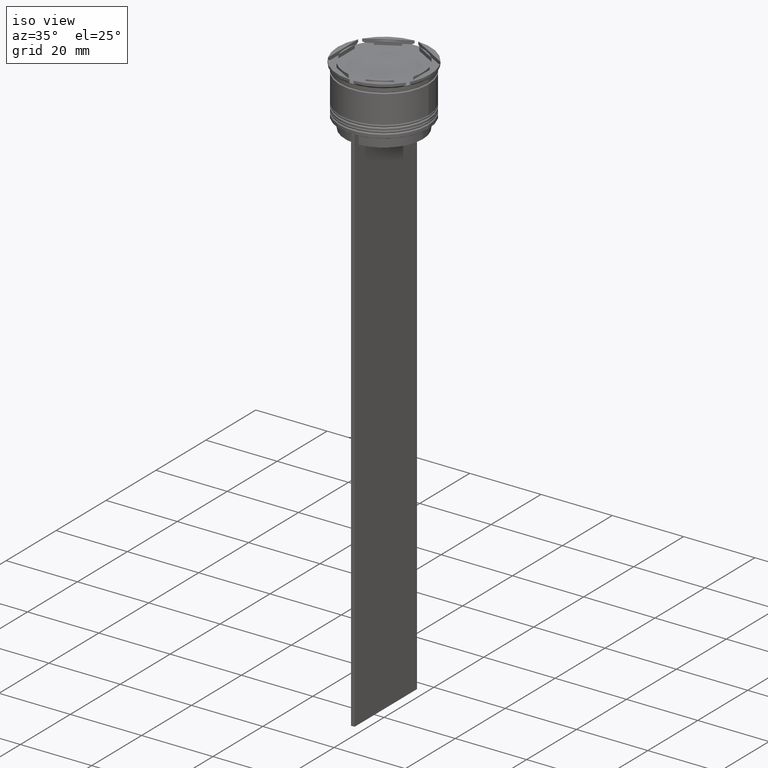
[diagram: clean part render]
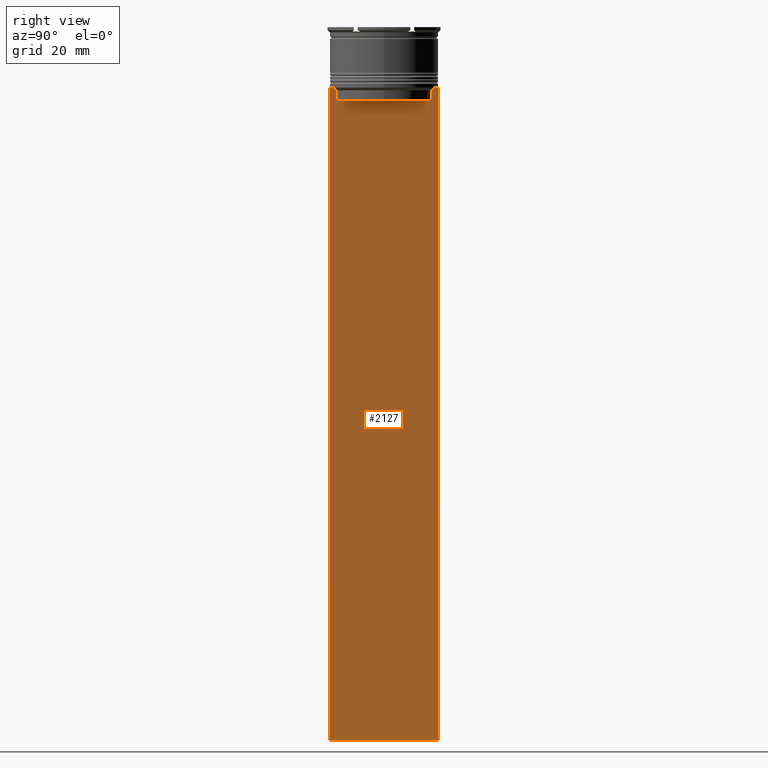
[diagram: tour spotlight — one face highlighted and labeled with its STEP entity id]
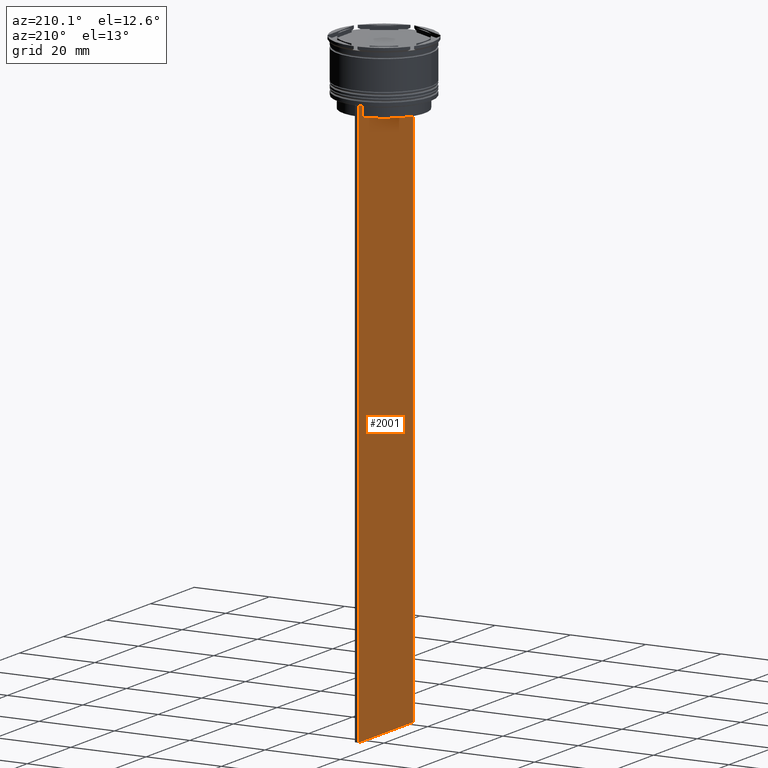
[diagram: tour spotlight — one face highlighted and labeled with its STEP entity id]
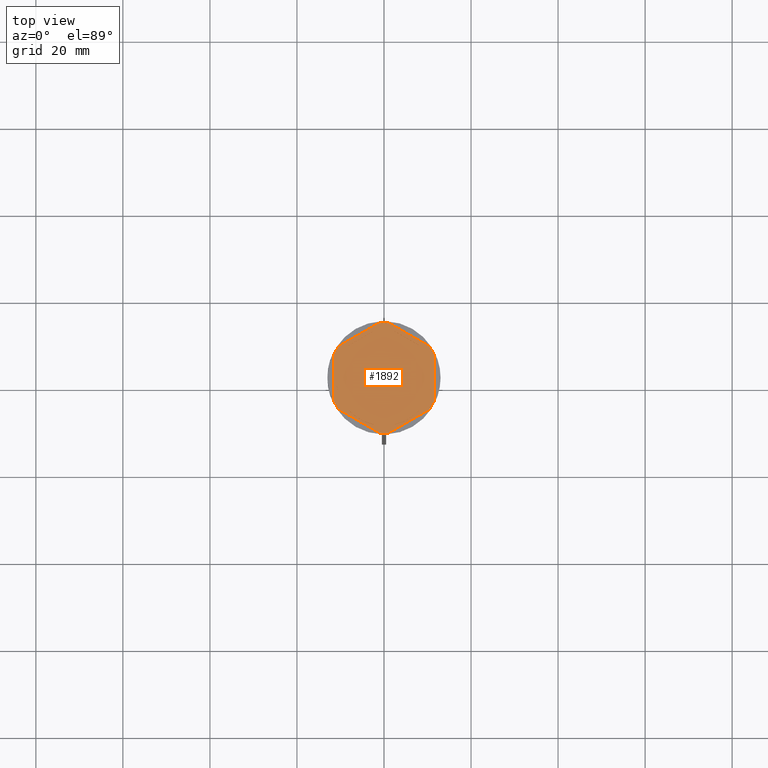
[diagram: tour spotlight — one face highlighted and labeled with its STEP entity id]
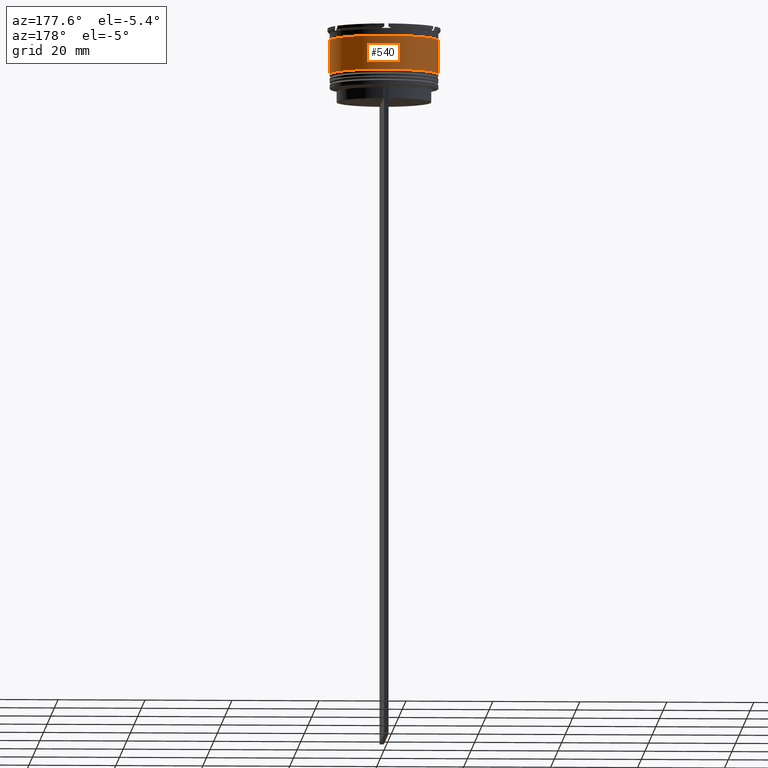
[diagram: tour spotlight — one face highlighted and labeled with its STEP entity id]
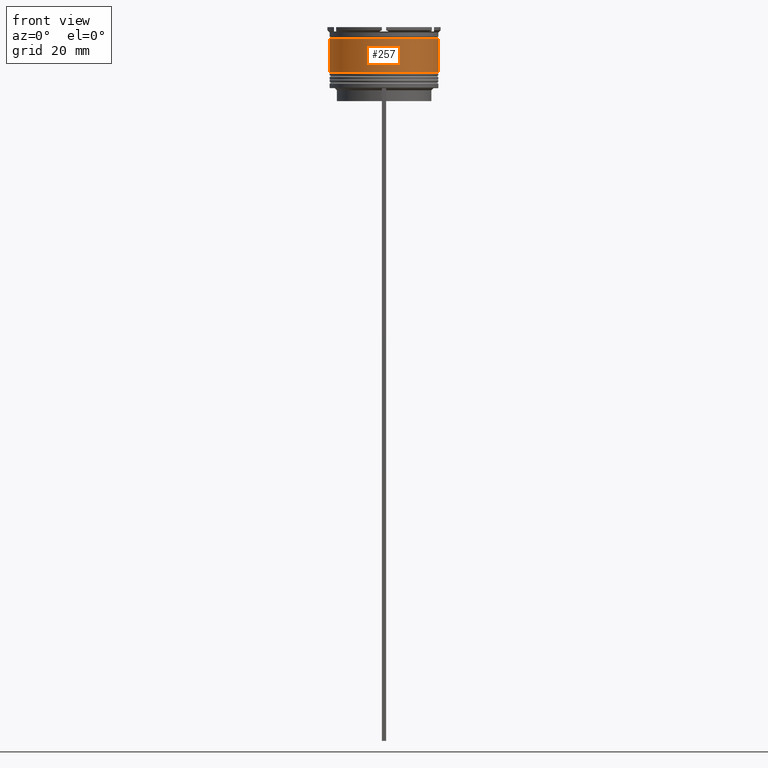
[diagram: tour spotlight — one face highlighted and labeled with its STEP entity id]
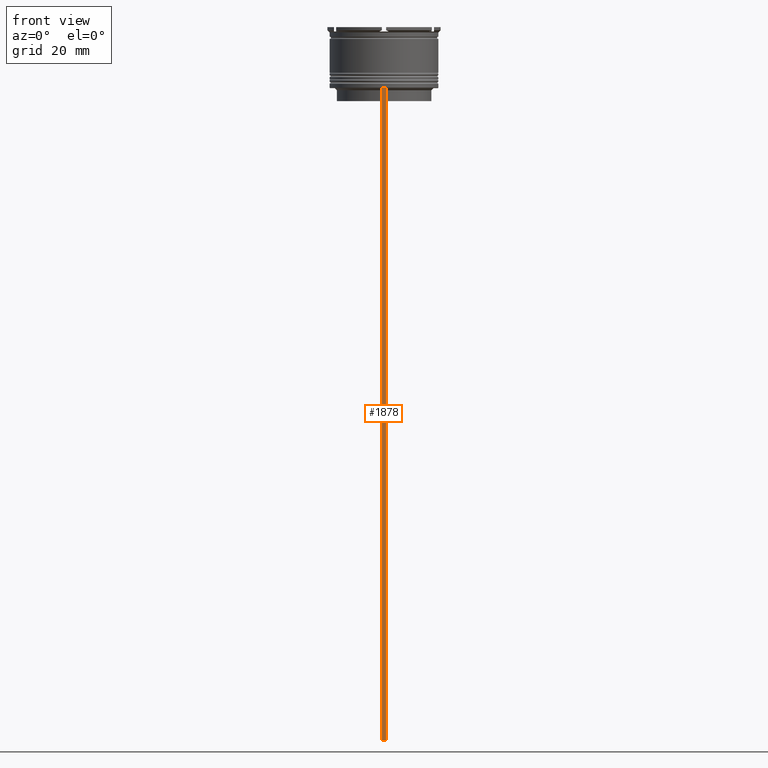
[diagram: tour spotlight — one face highlighted and labeled with its STEP entity id]
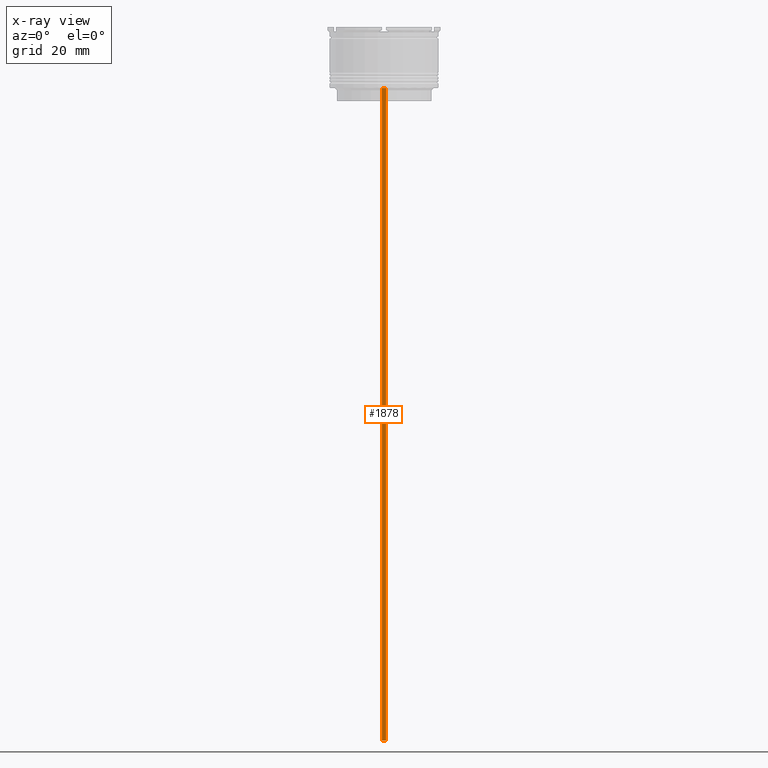
[diagram: x-ray of the same camera — body ghosted, this tour face saturated]
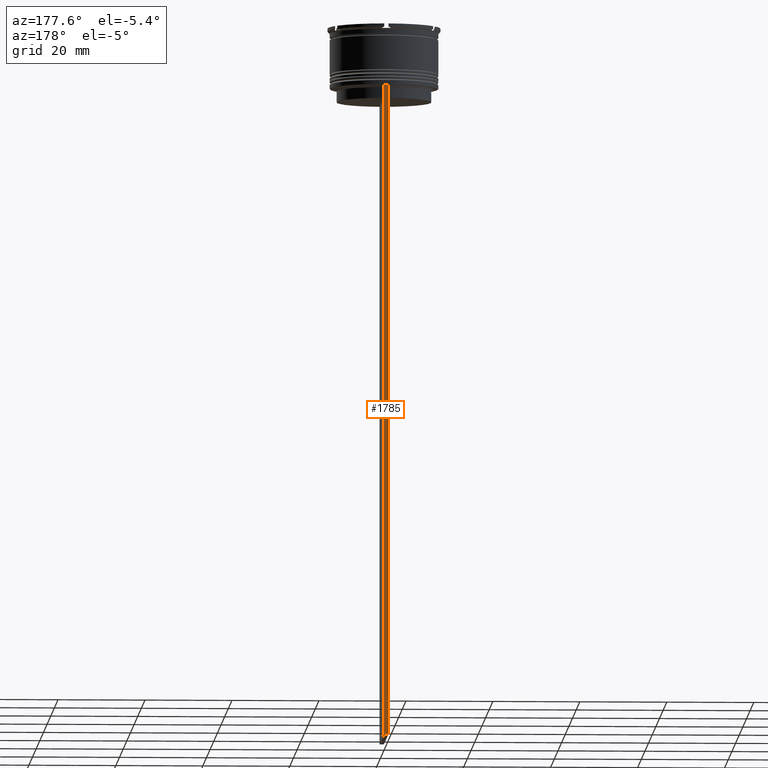
[diagram: tour spotlight — one face highlighted and labeled with its STEP entity id]
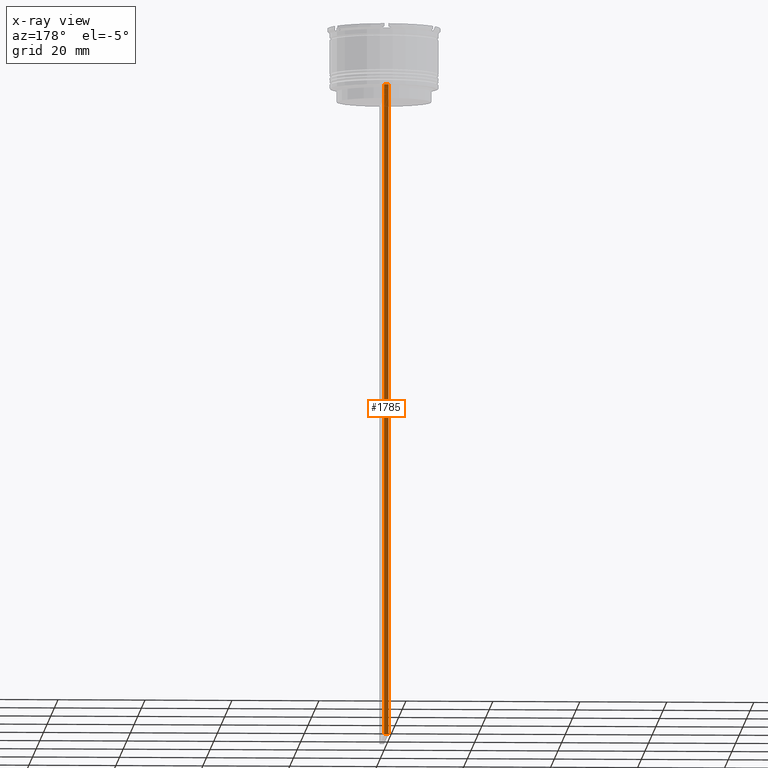
[diagram: x-ray of the same camera — body ghosted, this tour face saturated]
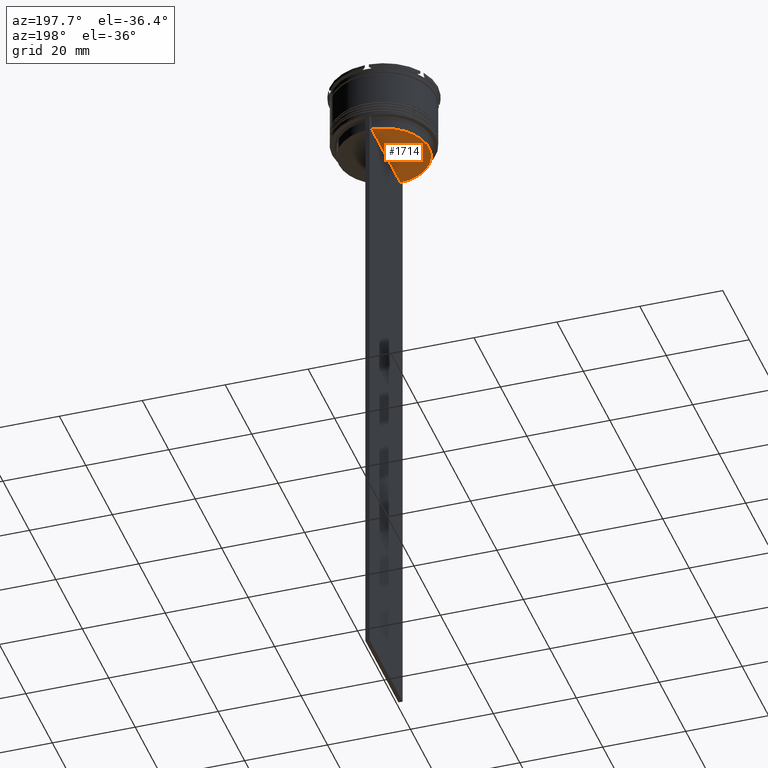
[diagram: tour spotlight — one face highlighted and labeled with its STEP entity id]
A machine part: a face-by-face anatomy tour. The part has 100 B-rep faces; the first image is the clean iso view, then the 8 largest visible faces are spotlighted one at a time (largest first), each with its STEP entity span.

Face 1 — right view, entity #2127. In plain terms, the highlighted planar face has unit normal (-1, 0, 0).
Definition (entity closure, byte-faithful):
#8 = ORIENTED_EDGE ( 'NONE', *, *, #1687, .T. ) ;
#27 = LINE ( 'NONE', #44, #544 ) ;
#44 = CARTESIAN_POINT ( 'NONE',  ( 0.5000000000000000000, -12.49999999999999289, -14.00000000000000178 ) ) ;
#67 = CARTESIAN_POINT ( 'NONE',  ( 0.5000000000000000000, -11.38902980942626719, -14.00000000000000178 ) ) ;
#79 = ORIENTED_EDGE ( 'NONE', *, *, #2332, .T. ) ;
#82 = ORIENTED_EDGE ( 'NONE', *, *, #2123, .T. ) ;
#118 = ORIENTED_EDGE ( 'NONE', *, *, #2616, .T. ) ;
#125 = CARTESIAN_POINT ( 'NONE',  ( 0.5000000000000000000, -12.49999999999999289, -14.00000000000000178 ) ) ;
#132 = ORIENTED_EDGE ( 'NONE', *, *, #2091, .T. ) ;
#140 = LINE ( 'NONE', #125, #1760 ) ;
#152 = PLANE ( 'NONE',  #1355 ) ;
#165 = EDGE_CURVE ( 'NONE', #2779, #744, #529, .T. ) ;
#180 = ORIENTED_EDGE ( 'NONE', *, *, #911, .T. ) ;
#228 = VECTOR ( 'NONE', #347, 1000.000000000000000 ) ;
#270 = DIRECTION ( 'NONE',  ( 0.000000000000000000, -1.000000000000000000, 0.000000000000000000 ) ) ;
#281 = ORIENTED_EDGE ( 'NONE', *, *, #847, .T. ) ;
#287 = VERTEX_POINT ( 'NONE', #1191 ) ;
#347 = DIRECTION ( 'NONE',  ( 0.000000000000000000, -1.000000000000000000, 0.000000000000000000 ) ) ;
#387 = VECTOR ( 'NONE', #1101, 1000.000000000000000 ) ;
#420 = EDGE_CURVE ( 'NONE', #1209, #1917, #2275, .T. ) ;
#472 = DIRECTION ( 'NONE',  ( 0.000000000000000000, 1.000000000000000000, 0.000000000000000000 ) ) ;
#477 = CARTESIAN_POINT ( 'NONE',  ( 0.5000000000000000000, -12.49999999999999289, -163.9999999999999716 ) ) ;
#488 = VECTOR ( 'NONE', #1418, 1000.000000000000000 ) ;
#513 = CARTESIAN_POINT ( 'NONE',  ( 0.5000000000000000000, -11.22219891450652973, -14.16667035398018903 ) ) ;
#529 = LINE ( 'NONE', #1813, #1664 ) ;
#543 = VERTEX_POINT ( 'NONE', #1670 ) ;
#544 = VECTOR ( 'NONE', #1182, 1000.000000000000000 ) ;
#611 = CARTESIAN_POINT ( 'NONE',  ( 0.5000000000000000000, -11.38902980942626719, -14.00000000000000178 ) ) ;
#628 = EDGE_CURVE ( 'NONE', #287, #1395, #1555, .T. ) ;
#723 = DIRECTION ( 'NONE',  ( 0.000000000000000000, 0.000000000000000000, -1.000000000000000000 ) ) ;
#733 = ORIENTED_EDGE ( 'NONE', *, *, #628, .T. ) ;
#744 = VERTEX_POINT ( 'NONE', #1335 ) ;
#832 = CARTESIAN_POINT ( 'NONE',  ( 0.5000000000000000000, 10.88852607105296144, -17.00000000000000000 ) ) ;
#840 = DIRECTION ( 'NONE',  ( -1.000000000000000000, 0.000000000000000000, 0.000000000000000000 ) ) ;
#847 = EDGE_CURVE ( 'NONE', #1966, #543, #27, .T. ) ;
#901 = LINE ( 'NONE', #1545, #2763 ) ;
#911 = EDGE_CURVE ( 'NONE', #1237, #1209, #1987, .T. ) ;
#940 = CARTESIAN_POINT ( 'NONE',  ( 0.5000000000000000000, -12.38991525394746773, -14.00000000000000178 ) ) ;
#1021 = LINE ( 'NONE', #2556, #228 ) ;
#1101 = DIRECTION ( 'NONE',  ( 0.000000000000000000, 0.000000000000000000, -1.000000000000000000 ) ) ;
#1182 = DIRECTION ( 'NONE',  ( 0.000000000000000000, -1.000000000000000000, 0.000000000000000000 ) ) ;
#1191 = CARTESIAN_POINT ( 'NONE',  ( 0.5000000000000000000, 11.38902980942626719, -14.00000000000000178 ) ) ;
#1209 = VERTEX_POINT ( 'NONE', #611 ) ;
#1237 = VERTEX_POINT ( 'NONE', #2399 ) ;
#1335 = CARTESIAN_POINT ( 'NONE',  ( 0.5000000000000000000, -12.49999999999999289, -163.9999999999999716 ) ) ;
#1355 = AXIS2_PLACEMENT_3D ( 'NONE', #1701, #840, #1918 ) ;
#1395 = VERTEX_POINT ( 'NONE', #2199 ) ;
#1418 = DIRECTION ( 'NONE',  ( 0.000000000000000000, -1.000000000000000000, 0.000000000000000000 ) ) ;
#1438 = CARTESIAN_POINT ( 'NONE',  ( 0.5000000000000000000, 11.22219891375843304, -14.16667035472756808 ) ) ;
#1478 = CARTESIAN_POINT ( 'NONE',  ( 0.5000000000000000000, 11.05536450345590538, -14.33333719074559376 ) ) ;
#1480 = VECTOR ( 'NONE', #2528, 1000.000000000000000 ) ;
#1494 = ORIENTED_EDGE ( 'NONE', *, *, #165, .T. ) ;
#1545 = CARTESIAN_POINT ( 'NONE',  ( 0.5000000000000000000, 10.88852607105296322, 0.000000000000000000 ) ) ;
#1555 = B_SPLINE_CURVE_WITH_KNOTS ( 'NONE', 3,
 ( #2810, #1438, #1478, #2362 ),
 .UNSPECIFIED., .F., .F.,
 ( 4, 4 ),
 ( 0.01935560801904634073, 0.02006307108468586772 ),
 .UNSPECIFIED. ) ;
#1580 = CARTESIAN_POINT ( 'NONE',  ( 0.5000000000000000000, 12.50000000000000711, 11.01999200639360765 ) ) ;
#1635 = LINE ( 'NONE', #1881, #488 ) ;
#1644 = CARTESIAN_POINT ( 'NONE',  ( 0.5000000000000000000, -10.88852607105296322, 0.000000000000000000 ) ) ;
#1661 = LINE ( 'NONE', #1644, #1480 ) ;
#1664 = VECTOR ( 'NONE', #723, 1000.000000000000000 ) ;
#1670 = CARTESIAN_POINT ( 'NONE',  ( 0.5000000000000000000, 12.38991525394746773, -14.00000000000000178 ) ) ;
#1687 = EDGE_CURVE ( 'NONE', #2331, #1237, #1661, .T. ) ;
#1701 = CARTESIAN_POINT ( 'NONE',  ( 0.5000000000000000000, -12.49999999999999289, 11.01999200639360765 ) ) ;
#1751 = LINE ( 'NONE', #1580, #387 ) ;
#1760 = VECTOR ( 'NONE', #2832, 1000.000000000000000 ) ;
#1779 = VERTEX_POINT ( 'NONE', #832 ) ;
#1813 = CARTESIAN_POINT ( 'NONE',  ( 0.5000000000000000000, -12.49999999999999289, 11.01999200639360765 ) ) ;
#1833 = CARTESIAN_POINT ( 'NONE',  ( 0.5000000000000000000, -10.88852607105296322, -14.50000000000000000 ) ) ;
#1881 = CARTESIAN_POINT ( 'NONE',  ( 0.5000000000000000000, 10.90000000000000213, -17.00000000000000000 ) ) ;
#1917 = VERTEX_POINT ( 'NONE', #940 ) ;
#1918 = DIRECTION ( 'NONE',  ( 0.000000000000000000, 0.000000000000000000, 1.000000000000000000 ) ) ;
#1966 = VERTEX_POINT ( 'NONE', #2733 ) ;
#1987 = B_SPLINE_CURVE_WITH_KNOTS ( 'NONE', 3,
 ( #1833, #2719, #513, #67 ),
 .UNSPECIFIED., .F., .F.,
 ( 4, 4 ),
 ( 0.05041323384703226551, 0.05112713601261605068 ),
 .UNSPECIFIED. ) ;
#2032 = CARTESIAN_POINT ( 'NONE',  ( 0.5000000000000000000, -12.49999999999999289, -14.00000000000000178 ) ) ;
#2091 = EDGE_CURVE ( 'NONE', #543, #287, #140, .T. ) ;
#2123 = EDGE_CURVE ( 'NONE', #1917, #2779, #1021, .T. ) ;
#2127 = ADVANCED_FACE ( 'NONE', ( #2366 ), #152, .F. ) ;
#2146 = VERTEX_POINT ( 'NONE', #2817 ) ;
#2199 = CARTESIAN_POINT ( 'NONE',  ( 0.5000000000000000000, 10.88852607105296322, -14.50000000000000000 ) ) ;
#2207 = CARTESIAN_POINT ( 'NONE',  ( 0.5000000000000000000, -12.49999999999999289, -14.00000000000000178 ) ) ;
#2208 = VECTOR ( 'NONE', #270, 1000.000000000000000 ) ;
#2239 = DIRECTION ( 'NONE',  ( 0.000000000000000000, 0.000000000000000000, -1.000000000000000000 ) ) ;
#2275 = LINE ( 'NONE', #2032, #2208 ) ;
#2331 = VERTEX_POINT ( 'NONE', #2687 ) ;
#2332 = EDGE_CURVE ( 'NONE', #744, #2146, #2468, .T. ) ;
#2353 = EDGE_CURVE ( 'NONE', #1966, #2146, #1751, .T. ) ;
#2362 = CARTESIAN_POINT ( 'NONE',  ( 0.5000000000000000000, 10.88852607105296322, -14.50000000000000000 ) ) ;
#2366 = FACE_OUTER_BOUND ( 'NONE', #2498, .T. ) ;
#2399 = CARTESIAN_POINT ( 'NONE',  ( 0.5000000000000000000, -10.88852607105296322, -14.50000000000000000 ) ) ;
#2468 = LINE ( 'NONE', #477, #2712 ) ;
#2498 = EDGE_LOOP ( 'NONE', ( #132, #733, #2784, #118, #8, #180, #2594, #82, #1494, #79, #2856, #281 ) ) ;
#2528 = DIRECTION ( 'NONE',  ( -0.000000000000000000, -0.000000000000000000, 1.000000000000000000 ) ) ;
#2556 = CARTESIAN_POINT ( 'NONE',  ( 0.5000000000000000000, -12.49999999999999289, -14.00000000000000178 ) ) ;
#2594 = ORIENTED_EDGE ( 'NONE', *, *, #420, .T. ) ;
#2616 = EDGE_CURVE ( 'NONE', #1779, #2331, #1635, .T. ) ;
#2687 = CARTESIAN_POINT ( 'NONE',  ( 0.5000000000000000000, -10.88852607105296144, -17.00000000000000000 ) ) ;
#2712 = VECTOR ( 'NONE', #472, 1000.000000000000000 ) ;
#2719 = CARTESIAN_POINT ( 'NONE',  ( 0.5000000000000000000, -11.05536450423839234, -14.33333718996393102 ) ) ;
#2733 = CARTESIAN_POINT ( 'NONE',  ( 0.5000000000000000000, 12.50000000000000711, -14.00000000000000178 ) ) ;
#2763 = VECTOR ( 'NONE', #2239, 1000.000000000000000 ) ;
#2779 = VERTEX_POINT ( 'NONE', #2207 ) ;
#2784 = ORIENTED_EDGE ( 'NONE', *, *, #2816, .T. ) ;
#2810 = CARTESIAN_POINT ( 'NONE',  ( 0.5000000000000000000, 11.38902980942626719, -14.00000000000000178 ) ) ;
#2816 = EDGE_CURVE ( 'NONE', #1395, #1779, #901, .T. ) ;
#2817 = CARTESIAN_POINT ( 'NONE',  ( 0.5000000000000000000, 12.50000000000000711, -163.9999999999999716 ) ) ;
#2832 = DIRECTION ( 'NONE',  ( 0.000000000000000000, -1.000000000000000000, 0.000000000000000000 ) ) ;
#2856 = ORIENTED_EDGE ( 'NONE', *, *, #2353, .F. ) ;

Face 2 — auxiliary view, entity #2001. In plain terms, the highlighted planar face has unit normal (-1, 0, 0).
Definition (entity closure, byte-faithful):
#1 = VERTEX_POINT ( 'NONE', #374 ) ;
#50 = DIRECTION ( 'NONE',  ( 0.000000000000000000, 0.000000000000000000, 1.000000000000000000 ) ) ;
#64 = EDGE_LOOP ( 'NONE', ( #479, #781, #1444, #647, #1913, #1279, #812, #1468, #2342, #608, #406, #2578 ) ) ;
#77 = EDGE_CURVE ( 'NONE', #361, #1572, #1782, .T. ) ;
#91 = EDGE_CURVE ( 'NONE', #1465, #394, #1969, .T. ) ;
#101 = CARTESIAN_POINT ( 'NONE',  ( -0.5000000000000000000, -12.49999999999999289, -14.00000000000000178 ) ) ;
#171 = CARTESIAN_POINT ( 'NONE',  ( -0.5000000000000000000, 10.88852607105296322, 0.000000000000000000 ) ) ;
#284 = CARTESIAN_POINT ( 'NONE',  ( -0.5000000000000000000, 11.38902980942626719, -14.00000000000000178 ) ) ;
#292 = CARTESIAN_POINT ( 'NONE',  ( -0.5000000000000000000, 12.50000000000000711, -14.00000000000000178 ) ) ;
#319 = DIRECTION ( 'NONE',  ( -1.000000000000000000, 0.000000000000000000, 0.000000000000000000 ) ) ;
#323 = CARTESIAN_POINT ( 'NONE',  ( -0.5000000000000000000, 11.38902980942626719, -14.00000000000000178 ) ) ;
#356 = DIRECTION ( 'NONE',  ( 0.000000000000000000, 0.000000000000000000, -1.000000000000000000 ) ) ;
#361 = VERTEX_POINT ( 'NONE', #1686 ) ;
#365 = VECTOR ( 'NONE', #1403, 1000.000000000000000 ) ;
#372 = CARTESIAN_POINT ( 'NONE',  ( -0.5000000000000000000, -12.49999999999999289, -163.9999999999999716 ) ) ;
#374 = CARTESIAN_POINT ( 'NONE',  ( -0.5000000000000000000, 12.50000000000000711, -163.9999999999999716 ) ) ;
#394 = VERTEX_POINT ( 'NONE', #563 ) ;
#406 = ORIENTED_EDGE ( 'NONE', *, *, #1673, .F. ) ;
#438 = CARTESIAN_POINT ( 'NONE',  ( -0.5000000000000000000, 12.50000000000000711, 11.01999200639360765 ) ) ;
#459 = VECTOR ( 'NONE', #2141, 1000.000000000000000 ) ;
#465 = CARTESIAN_POINT ( 'NONE',  ( -0.5000000000000000000, -10.88852607105296322, -14.50000000000000000 ) ) ;
#479 = ORIENTED_EDGE ( 'NONE', *, *, #490, .F. ) ;
#490 = EDGE_CURVE ( 'NONE', #1072, #1229, #1246, .T. ) ;
#495 = VECTOR ( 'NONE', #1250, 1000.000000000000000 ) ;
#534 = VERTEX_POINT ( 'NONE', #797 ) ;
#536 = CARTESIAN_POINT ( 'NONE',  ( -0.5000000000000000000, 10.90000000000000213, -17.00000000000000000 ) ) ;
#550 = VECTOR ( 'NONE', #1995, 1000.000000000000000 ) ;
#563 = CARTESIAN_POINT ( 'NONE',  ( -0.5000000000000000000, -10.88852607105296322, -14.50000000000000000 ) ) ;
#580 = EDGE_CURVE ( 'NONE', #1572, #1868, #1912, .T. ) ;
#608 = ORIENTED_EDGE ( 'NONE', *, *, #91, .F. ) ;
#631 = EDGE_CURVE ( 'NONE', #1868, #1, #1464, .T. ) ;
#647 = ORIENTED_EDGE ( 'NONE', *, *, #1419, .T. ) ;
#663 = DIRECTION ( 'NONE',  ( 0.000000000000000000, -1.000000000000000000, 0.000000000000000000 ) ) ;
#665 = EDGE_CURVE ( 'NONE', #2520, #1248, #2101, .T. ) ;
#677 = CARTESIAN_POINT ( 'NONE',  ( -0.5000000000000000000, -12.49999999999999289, -14.00000000000000178 ) ) ;
#697 = CARTESIAN_POINT ( 'NONE',  ( -0.5000000000000000000, -10.88852607105296322, 0.000000000000000000 ) ) ;
#737 = CARTESIAN_POINT ( 'NONE',  ( -0.5000000000000000000, 11.22219891375843304, -14.16667035472756808 ) ) ;
#781 = ORIENTED_EDGE ( 'NONE', *, *, #2385, .F. ) ;
#784 = VECTOR ( 'NONE', #663, 1000.000000000000000 ) ;
#797 = CARTESIAN_POINT ( 'NONE',  ( -0.5000000000000000000, 10.88852607105296144, -17.00000000000000000 ) ) ;
#812 = ORIENTED_EDGE ( 'NONE', *, *, #77, .F. ) ;
#854 = CARTESIAN_POINT ( 'NONE',  ( -0.5000000000000000000, -11.22219891450652973, -14.16667035398018903 ) ) ;
#880 = LINE ( 'NONE', #677, #1181 ) ;
#895 = VERTEX_POINT ( 'NONE', #2241 ) ;
#919 = LINE ( 'NONE', #438, #550 ) ;
#928 = FACE_OUTER_BOUND ( 'NONE', #64, .T. ) ;
#994 = DIRECTION ( 'NONE',  ( 0.000000000000000000, -1.000000000000000000, 0.000000000000000000 ) ) ;
#1072 = VERTEX_POINT ( 'NONE', #323 ) ;
#1093 = CARTESIAN_POINT ( 'NONE',  ( -0.5000000000000000000, -12.49999999999999289, -163.9999999999999716 ) ) ;
#1174 = CARTESIAN_POINT ( 'NONE',  ( -0.5000000000000000000, 10.88852607105296322, -14.50000000000000000 ) ) ;
#1181 = VECTOR ( 'NONE', #2012, 1000.000000000000000 ) ;
#1206 = AXIS2_PLACEMENT_3D ( 'NONE', #2480, #319, #50 ) ;
#1229 = VERTEX_POINT ( 'NONE', #1705 ) ;
#1246 = B_SPLINE_CURVE_WITH_KNOTS ( 'NONE', 3,
 ( #284, #737, #1796, #1174 ),
 .UNSPECIFIED., .F., .F.,
 ( 4, 4 ),
 ( 0.01935560801904634073, 0.02006307108468586772 ),
 .UNSPECIFIED. ) ;
#1248 = VERTEX_POINT ( 'NONE', #2181 ) ;
#1250 = DIRECTION ( 'NONE',  ( 0.000000000000000000, 1.000000000000000000, 0.000000000000000000 ) ) ;
#1259 = LINE ( 'NONE', #171, #459 ) ;
#1273 = EDGE_CURVE ( 'NONE', #895, #361, #1331, .T. ) ;
#1279 = ORIENTED_EDGE ( 'NONE', *, *, #580, .F. ) ;
#1331 = LINE ( 'NONE', #2881, #2358 ) ;
#1403 = DIRECTION ( 'NONE',  ( 0.000000000000000000, -1.000000000000000000, 0.000000000000000000 ) ) ;
#1419 = EDGE_CURVE ( 'NONE', #2520, #1, #919, .T. ) ;
#1444 = ORIENTED_EDGE ( 'NONE', *, *, #665, .F. ) ;
#1464 = LINE ( 'NONE', #372, #495 ) ;
#1465 = VERTEX_POINT ( 'NONE', #2227 ) ;
#1468 = ORIENTED_EDGE ( 'NONE', *, *, #1273, .F. ) ;
#1519 = VECTOR ( 'NONE', #356, 1000.000000000000000 ) ;
#1567 = VECTOR ( 'NONE', #994, 1000.000000000000000 ) ;
#1572 = VERTEX_POINT ( 'NONE', #2322 ) ;
#1586 = CARTESIAN_POINT ( 'NONE',  ( -0.5000000000000000000, -11.05536450423839234, -14.33333718996393102 ) ) ;
#1618 = LINE ( 'NONE', #536, #365 ) ;
#1673 = EDGE_CURVE ( 'NONE', #534, #1465, #1618, .T. ) ;
#1686 = CARTESIAN_POINT ( 'NONE',  ( -0.5000000000000000000, -12.38991525394746773, -14.00000000000000178 ) ) ;
#1705 = CARTESIAN_POINT ( 'NONE',  ( -0.5000000000000000000, 10.88852607105296322, -14.50000000000000000 ) ) ;
#1738 = CARTESIAN_POINT ( 'NONE',  ( -0.5000000000000000000, -12.49999999999999289, -14.00000000000000178 ) ) ;
#1774 = DIRECTION ( 'NONE',  ( 0.000000000000000000, -1.000000000000000000, 0.000000000000000000 ) ) ;
#1782 = LINE ( 'NONE', #1738, #784 ) ;
#1784 = EDGE_CURVE ( 'NONE', #1229, #534, #1259, .T. ) ;
#1787 = CARTESIAN_POINT ( 'NONE',  ( -0.5000000000000000000, -11.38902980942626719, -14.00000000000000178 ) ) ;
#1796 = CARTESIAN_POINT ( 'NONE',  ( -0.5000000000000000000, 11.05536450345590538, -14.33333719074559376 ) ) ;
#1858 = EDGE_CURVE ( 'NONE', #394, #895, #2608, .T. ) ;
#1868 = VERTEX_POINT ( 'NONE', #1093 ) ;
#1912 = LINE ( 'NONE', #2534, #1519 ) ;
#1913 = ORIENTED_EDGE ( 'NONE', *, *, #631, .F. ) ;
#1969 = LINE ( 'NONE', #697, #2395 ) ;
#1995 = DIRECTION ( 'NONE',  ( 0.000000000000000000, 0.000000000000000000, -1.000000000000000000 ) ) ;
#2001 = ADVANCED_FACE ( 'NONE', ( #928 ), #2307, .T. ) ;
#2003 = DIRECTION ( 'NONE',  ( -0.000000000000000000, -0.000000000000000000, 1.000000000000000000 ) ) ;
#2012 = DIRECTION ( 'NONE',  ( 0.000000000000000000, -1.000000000000000000, 0.000000000000000000 ) ) ;
#2101 = LINE ( 'NONE', #101, #1567 ) ;
#2141 = DIRECTION ( 'NONE',  ( 0.000000000000000000, 0.000000000000000000, -1.000000000000000000 ) ) ;
#2181 = CARTESIAN_POINT ( 'NONE',  ( -0.5000000000000000000, 12.38991525394746773, -14.00000000000000178 ) ) ;
#2227 = CARTESIAN_POINT ( 'NONE',  ( -0.5000000000000000000, -10.88852607105296144, -17.00000000000000000 ) ) ;
#2241 = CARTESIAN_POINT ( 'NONE',  ( -0.5000000000000000000, -11.38902980942626719, -14.00000000000000178 ) ) ;
#2307 = PLANE ( 'NONE',  #1206 ) ;
#2322 = CARTESIAN_POINT ( 'NONE',  ( -0.5000000000000000000, -12.49999999999999289, -14.00000000000000178 ) ) ;
#2342 = ORIENTED_EDGE ( 'NONE', *, *, #1858, .F. ) ;
#2358 = VECTOR ( 'NONE', #1774, 1000.000000000000000 ) ;
#2385 = EDGE_CURVE ( 'NONE', #1248, #1072, #880, .T. ) ;
#2395 = VECTOR ( 'NONE', #2003, 1000.000000000000000 ) ;
#2480 = CARTESIAN_POINT ( 'NONE',  ( -0.5000000000000000000, -12.49999999999999289, 11.01999200639360765 ) ) ;
#2520 = VERTEX_POINT ( 'NONE', #292 ) ;
#2534 = CARTESIAN_POINT ( 'NONE',  ( -0.5000000000000000000, -12.49999999999999289, 11.01999200639360765 ) ) ;
#2578 = ORIENTED_EDGE ( 'NONE', *, *, #1784, .F. ) ;
#2608 = B_SPLINE_CURVE_WITH_KNOTS ( 'NONE', 3,
 ( #465, #1586, #854, #1787 ),
 .UNSPECIFIED., .F., .F.,
 ( 4, 4 ),
 ( 0.05041323384703226551, 0.05112713601261605068 ),
 .UNSPECIFIED. ) ;
#2881 = CARTESIAN_POINT ( 'NONE',  ( -0.5000000000000000000, -12.49999999999999289, -14.00000000000000178 ) ) ;

Face 3 — top view, entity #1892. In plain terms, the highlighted planar face has unit normal (0, 0, 1).
Definition (entity closure, byte-faithful):
#7 = DIRECTION ( 'NONE',  ( 0.000000000000000000, 0.000000000000000000, 1.000000000000000000 ) ) ;
#20 = EDGE_CURVE ( 'NONE', #2147, #2324, #909, .T. ) ;
#30 = VERTEX_POINT ( 'NONE', #1087 ) ;
#37 = CIRCLE ( 'NONE', #2226, 12.69999999999999929 ) ;
#68 = VERTEX_POINT ( 'NONE', #1324 ) ;
#86 = VERTEX_POINT ( 'NONE', #1797 ) ;
#89 = CARTESIAN_POINT ( 'NONE',  ( 0.000000000000000000, 0.000000000000000000, -1.000000000000000000 ) ) ;
#105 = CARTESIAN_POINT ( 'NONE',  ( -1.083095244168779780, -12.65373086058253982, -1.000000000000000000 ) ) ;
#113 = EDGE_LOOP ( 'NONE', ( #1315, #934 ) ) ;
#120 = AXIS2_PLACEMENT_3D ( 'NONE', #89, #2771, #2550 ) ;
#121 = CIRCLE ( 'NONE', #167, 12.69999999999999929 ) ;
#122 = VERTEX_POINT ( 'NONE', #416 ) ;
#134 = EDGE_CURVE ( 'NONE', #2829, #2834, #1147, .T. ) ;
#135 = ORIENTED_EDGE ( 'NONE', *, *, #2632, .F. ) ;
#167 = AXIS2_PLACEMENT_3D ( 'NONE', #2461, #1604, #1620 ) ;
#184 = FACE_BOUND ( 'NONE', #695, .T. ) ;
#191 = DIRECTION ( 'NONE',  ( -0.000000000000000000, -0.000000000000000000, -1.000000000000000000 ) ) ;
#192 = CARTESIAN_POINT ( 'NONE',  ( 11.50000000000000000, 6.639528095680698350, -1.000000000000000000 ) ) ;
#206 = LINE ( 'NONE', #1104, #1017 ) ;
#215 = LINE ( 'NONE', #1114, #997 ) ;
#229 = FACE_BOUND ( 'NONE', #113, .T. ) ;
#296 = DIRECTION ( 'NONE',  ( -0.000000000000000000, -0.000000000000000000, -1.000000000000000000 ) ) ;
#318 = AXIS2_PLACEMENT_3D ( 'NONE', #1872, #2265, #725 ) ;
#334 = VERTEX_POINT ( 'NONE', #2792 ) ;
#345 = VERTEX_POINT ( 'NONE', #782 ) ;
#346 = ORIENTED_EDGE ( 'NONE', *, *, #134, .T. ) ;
#348 = ORIENTED_EDGE ( 'NONE', *, *, #843, .F. ) ;
#355 = VECTOR ( 'NONE', #865, 1000.000000000000000 ) ;
#377 = CARTESIAN_POINT ( 'NONE',  ( -11.00000000000000000, 0.000000000000000000, -1.000000000000000000 ) ) ;
#399 = ORIENTED_EDGE ( 'NONE', *, *, #609, .F. ) ;
#416 = CARTESIAN_POINT ( 'NONE',  ( 2.410545827099861871, 10.73262637081210791, -1.000000000000000888 ) ) ;
#421 = FACE_BOUND ( 'NONE', #2657, .T. ) ;
#425 = CARTESIAN_POINT ( 'NONE',  ( -10.49999999999999822, 3.278719262151000624, -1.000000000000000888 ) ) ;
#435 = VERTEX_POINT ( 'NONE', #950 ) ;
#445 = CARTESIAN_POINT ( 'NONE',  ( -2.410545827099867200, 10.73262637081210613, -1.000000000000000888 ) ) ;
#448 = FACE_BOUND ( 'NONE', #1410, .T. ) ;
#449 = VERTEX_POINT ( 'NONE', #1812 ) ;
#458 = LINE ( 'NONE', #2871, #1554 ) ;
#484 = DIRECTION ( 'NONE',  ( 0.000000000000000000, 0.000000000000000000, 1.000000000000000000 ) ) ;
#497 = DIRECTION ( 'NONE',  ( 1.000000000000000000, 0.000000000000000000, 0.000000000000000000 ) ) ;
#507 = EDGE_CURVE ( 'NONE', #2829, #449, #1051, .T. ) ;
#527 = VERTEX_POINT ( 'NONE', #2521 ) ;
#539 = CIRCLE ( 'NONE', #120, 11.00000000000000000 ) ;
#545 = CARTESIAN_POINT ( 'NONE',  ( 10.49999999999999467, 6.062177826491072175, -1.000000000000000888 ) ) ;
#546 = EDGE_CURVE ( 'NONE', #1809, #30, #539, .T. ) ;
#564 = ORIENTED_EDGE ( 'NONE', *, *, #2410, .F. ) ;
#566 = CARTESIAN_POINT ( 'NONE',  ( -11.50000000000000000, -6.639528095680696573, -1.000000000000000000 ) ) ;
#594 = CARTESIAN_POINT ( 'NONE',  ( 0.000000000000000000, 0.000000000000000000, -1.000000000000000000 ) ) ;
#609 = EDGE_CURVE ( 'NONE', #122, #435, #1652, .T. ) ;
#614 = DIRECTION ( 'NONE',  ( 1.306360520641008153E-16, 1.000000000000000000, 0.000000000000000000 ) ) ;
#618 = ORIENTED_EDGE ( 'NONE', *, *, #2108, .F. ) ;
#624 = EDGE_LOOP ( 'NONE', ( #941, #2284, #346, #778, #2377, #564, #2813, #1862, #1040, #618, #2344, #348 ) ) ;
#645 = LINE ( 'NONE', #1305, #1106 ) ;
#664 = DIRECTION ( 'NONE',  ( 0.000000000000000000, 0.000000000000000000, 1.000000000000000000 ) ) ;
#684 = CIRCLE ( 'NONE', #1429, 11.00000000000000000 ) ;
#685 = FACE_OUTER_BOUND ( 'NONE', #624, .T. ) ;
#695 = EDGE_LOOP ( 'NONE', ( #900, #1240 ) ) ;
#722 = DIRECTION ( 'NONE',  ( 1.000000000000000000, -1.776356839400250465E-14, 0.000000000000000000 ) ) ;
#725 = DIRECTION ( 'NONE',  ( 1.000000000000000000, 1.243449787580175325E-14, 0.000000000000000000 ) ) ;
#740 = CIRCLE ( 'NONE', #318, 12.69999999999999929 ) ;
#778 = ORIENTED_EDGE ( 'NONE', *, *, #2019, .F. ) ;
#782 = CARTESIAN_POINT ( 'NONE',  ( -10.41690475583121334, -7.264853426459548125, -1.000000000000000000 ) ) ;
#792 = CARTESIAN_POINT ( 'NONE',  ( 0.000000000000000000, 0.000000000000000000, -1.000000000000000000 ) ) ;
#794 = EDGE_CURVE ( 'NONE', #988, #449, #645, .T. ) ;
#828 = CARTESIAN_POINT ( 'NONE',  ( -8.089454172900135021, 7.453907108661106840, -1.000000000000000888 ) ) ;
#842 = EDGE_CURVE ( 'NONE', #853, #2114, #684, .T. ) ;
#843 = EDGE_CURVE ( 'NONE', #988, #527, #121, .T. ) ;
#853 = VERTEX_POINT ( 'NONE', #2502 ) ;
#862 = ORIENTED_EDGE ( 'NONE', *, *, #2203, .F. ) ;
#865 = DIRECTION ( 'NONE',  ( -0.8660254037844388186, 0.4999999999999997224, 0.000000000000000000 ) ) ;
#875 = VECTOR ( 'NONE', #1137, 1000.000000000000000 ) ;
#891 = DIRECTION ( 'NONE',  ( -0.8660254037844387076, -0.4999999999999999445, 0.000000000000000000 ) ) ;
#900 = ORIENTED_EDGE ( 'NONE', *, *, #1005, .F. ) ;
#903 = AXIS2_PLACEMENT_3D ( 'NONE', #2613, #2194, #1317 ) ;
#909 = LINE ( 'NONE', #2234, #2770 ) ;
#934 = ORIENTED_EDGE ( 'NONE', *, *, #20, .F. ) ;
#941 = ORIENTED_EDGE ( 'NONE', *, *, #794, .T. ) ;
#949 = VECTOR ( 'NONE', #2645, 1000.000000000000114 ) ;
#950 = CARTESIAN_POINT ( 'NONE',  ( 8.089454172900138573, 7.453907108661105063, -1.000000000000000888 ) ) ;
#988 = VERTEX_POINT ( 'NONE', #2529 ) ;
#997 = VECTOR ( 'NONE', #891, 999.9999999999998863 ) ;
#1005 = EDGE_CURVE ( 'NONE', #1289, #68, #1056, .T. ) ;
#1012 = DIRECTION ( 'NONE',  ( 0.8660254037844387076, -0.4999999999999999445, 0.000000000000000000 ) ) ;
#1017 = VECTOR ( 'NONE', #2604, 1000.000000000000000 ) ;
#1033 = ORIENTED_EDGE ( 'NONE', *, *, #1398, .F. ) ;
#1040 = ORIENTED_EDGE ( 'NONE', *, *, #2039, .T. ) ;
#1051 = CIRCLE ( 'NONE', #2259, 12.69999999999999929 ) ;
#1056 = CIRCLE ( 'NONE', #2262, 11.00000000000000000 ) ;
#1081 = CARTESIAN_POINT ( 'NONE',  ( -2.410545827099876082, -10.73262637081210435, -1.000000000000000888 ) ) ;
#1084 = DIRECTION ( 'NONE',  ( 1.000000000000000000, 0.000000000000000000, 0.000000000000000000 ) ) ;
#1087 = CARTESIAN_POINT ( 'NONE',  ( -10.49999999999999822, -3.278719262151000624, -1.000000000000000888 ) ) ;
#1104 = CARTESIAN_POINT ( 'NONE',  ( -10.49999999999999822, 6.062177826491068622, -1.000000000000000888 ) ) ;
#1106 = VECTOR ( 'NONE', #614, 1000.000000000000000 ) ;
#1107 = CARTESIAN_POINT ( 'NONE',  ( 0.000000000000000000, 0.000000000000000000, -1.000000000000000000 ) ) ;
#1110 = FACE_BOUND ( 'NONE', #1852, .T. ) ;
#1114 = CARTESIAN_POINT ( 'NONE',  ( -2.602085213965210642E-15, -12.12435565298214080, -1.000000000000000888 ) ) ;
#1119 = ORIENTED_EDGE ( 'NONE', *, *, #2512, .F. ) ;
#1120 = DIRECTION ( 'NONE',  ( 1.000000000000000000, 7.105427357601001859E-15, 0.000000000000000000 ) ) ;
#1124 = CARTESIAN_POINT ( 'NONE',  ( -10.49999999999999822, -6.062177826491068622, -1.000000000000000888 ) ) ;
#1137 = DIRECTION ( 'NONE',  ( -0.8660254037844384856, 0.5000000000000002220, 0.000000000000000000 ) ) ;
#1147 = LINE ( 'NONE', #192, #355 ) ;
#1240 = ORIENTED_EDGE ( 'NONE', *, *, #2870, .F. ) ;
#1251 = VERTEX_POINT ( 'NONE', #1081 ) ;
#1278 = VECTOR ( 'NONE', #2273, 1000.000000000000000 ) ;
#1281 = DIRECTION ( 'NONE',  ( -0.000000000000000000, -0.000000000000000000, -1.000000000000000000 ) ) ;
#1289 = VERTEX_POINT ( 'NONE', #1524 ) ;
#1305 = CARTESIAN_POINT ( 'NONE',  ( 11.49999999999999822, -6.639528095680694797, -1.000000000000000000 ) ) ;
#1315 = ORIENTED_EDGE ( 'NONE', *, *, #1499, .F. ) ;
#1317 = DIRECTION ( 'NONE',  ( 1.000000000000000000, 0.000000000000000000, 0.000000000000000000 ) ) ;
#1323 = CARTESIAN_POINT ( 'NONE',  ( 0.000000000000000000, 0.000000000000000000, -1.000000000000000000 ) ) ;
#1324 = CARTESIAN_POINT ( 'NONE',  ( 8.089454172900135021, -7.453907108661109504, -1.000000000000000888 ) ) ;
#1342 = DIRECTION ( 'NONE',  ( 1.000000000000000000, 0.000000000000000000, 0.000000000000000000 ) ) ;
#1352 = EDGE_CURVE ( 'NONE', #345, #2068, #2821, .T. ) ;
#1364 = ORIENTED_EDGE ( 'NONE', *, *, #1821, .F. ) ;
#1392 = DIRECTION ( 'NONE',  ( 0.000000000000000000, 0.000000000000000000, 1.000000000000000000 ) ) ;
#1398 = EDGE_CURVE ( 'NONE', #30, #1402, #206, .T. ) ;
#1402 = VERTEX_POINT ( 'NONE', #425 ) ;
#1410 = EDGE_LOOP ( 'NONE', ( #135, #399 ) ) ;
#1429 = AXIS2_PLACEMENT_3D ( 'NONE', #2485, #1392, #497 ) ;
#1460 = DIRECTION ( 'NONE',  ( 1.000000000000000000, 0.000000000000000000, 0.000000000000000000 ) ) ;
#1469 = CARTESIAN_POINT ( 'NONE',  ( 1.083095244168774673, -12.65373086058253982, -1.000000000000000000 ) ) ;
#1490 = CARTESIAN_POINT ( 'NONE',  ( 0.000000000000000000, 13.27905619136138959, -1.000000000000000000 ) ) ;
#1499 = EDGE_CURVE ( 'NONE', #2324, #2147, #2361, .T. ) ;
#1507 = AXIS2_PLACEMENT_3D ( 'NONE', #2419, #2696, #1084 ) ;
#1524 = CARTESIAN_POINT ( 'NONE',  ( 2.410545827099865868, -10.73262637081210791, -1.000000000000000888 ) ) ;
#1554 = VECTOR ( 'NONE', #1593, 1000.000000000000000 ) ;
#1571 = DIRECTION ( 'NONE',  ( 1.000000000000000000, 0.000000000000000000, -0.000000000000000000 ) ) ;
#1583 = CARTESIAN_POINT ( 'NONE',  ( 0.000000000000000000, 0.000000000000000000, -1.000000000000000000 ) ) ;
#1593 = DIRECTION ( 'NONE',  ( 0.000000000000000000, -1.000000000000000000, 0.000000000000000000 ) ) ;
#1604 = DIRECTION ( 'NONE',  ( -0.000000000000000000, -0.000000000000000000, -1.000000000000000000 ) ) ;
#1620 = DIRECTION ( 'NONE',  ( 1.000000000000000000, 0.000000000000000000, 0.000000000000000000 ) ) ;
#1652 = LINE ( 'NONE', #545, #2396 ) ;
#1693 = CIRCLE ( 'NONE', #1507, 12.69999999999999929 ) ;
#1713 = DIRECTION ( 'NONE',  ( 0.8660254037844387076, -0.4999999999999997780, 0.000000000000000000 ) ) ;
#1763 = LINE ( 'NONE', #1790, #949 ) ;
#1781 = AXIS2_PLACEMENT_3D ( 'NONE', #1107, #664, #1342 ) ;
#1790 = CARTESIAN_POINT ( 'NONE',  ( 5.612359739892467248E-18, -13.27905619136138959, -1.000000000000000000 ) ) ;
#1797 = CARTESIAN_POINT ( 'NONE',  ( -8.089454172900133244, -7.453907108661111280, -1.000000000000000888 ) ) ;
#1809 = VERTEX_POINT ( 'NONE', #377 ) ;
#1812 = CARTESIAN_POINT ( 'NONE',  ( 11.49999999999999822, 5.388877434122992582, -1.000000000000000000 ) ) ;
#1821 = EDGE_CURVE ( 'NONE', #1251, #86, #2879, .T. ) ;
#1852 = EDGE_LOOP ( 'NONE', ( #862, #1033, #2063 ) ) ;
#1862 = ORIENTED_EDGE ( 'NONE', *, *, #1352, .F. ) ;
#1872 = CARTESIAN_POINT ( 'NONE',  ( 0.000000000000000000, 0.000000000000000000, -1.000000000000000000 ) ) ;
#1880 = VERTEX_POINT ( 'NONE', #2204 ) ;
#1888 = CARTESIAN_POINT ( 'NONE',  ( 10.49999999999999467, 3.278719262151012170, -1.000000000000000888 ) ) ;
#1892 = ADVANCED_FACE ( 'NONE', ( #448, #2413, #184, #421, #1110, #229, #685 ), #2456, .T. ) ;
#1933 = DIRECTION ( 'NONE',  ( 1.000000000000000000, 0.000000000000000000, 0.000000000000000000 ) ) ;
#1978 = DIRECTION ( 'NONE',  ( 0.000000000000000000, 0.000000000000000000, 1.000000000000000000 ) ) ;
#1983 = EDGE_LOOP ( 'NONE', ( #2274, #1119 ) ) ;
#2008 = CARTESIAN_POINT ( 'NONE',  ( 1.083095244168781557, 12.65373086058254160, -1.000000000000000000 ) ) ;
#2019 = EDGE_CURVE ( 'NONE', #1880, #2834, #740, .T. ) ;
#2020 = AXIS2_PLACEMENT_3D ( 'NONE', #2474, #484, #1933 ) ;
#2039 = EDGE_CURVE ( 'NONE', #345, #2135, #2777, .T. ) ;
#2041 = VECTOR ( 'NONE', #1713, 1000.000000000000227 ) ;
#2045 = CARTESIAN_POINT ( 'NONE',  ( 10.49999999999999289, -6.062177826491073063, -1.000000000000000888 ) ) ;
#2050 = VERTEX_POINT ( 'NONE', #1469 ) ;
#2063 = ORIENTED_EDGE ( 'NONE', *, *, #546, .F. ) ;
#2068 = VERTEX_POINT ( 'NONE', #2580 ) ;
#2108 = EDGE_CURVE ( 'NONE', #2050, #2135, #37, .T. ) ;
#2114 = VERTEX_POINT ( 'NONE', #1888 ) ;
#2115 = CIRCLE ( 'NONE', #903, 11.00000000000000000 ) ;
#2135 = VERTEX_POINT ( 'NONE', #105 ) ;
#2147 = VERTEX_POINT ( 'NONE', #828 ) ;
#2187 = DIRECTION ( 'NONE',  ( 0.8660254037844385966, 0.5000000000000001110, -0.000000000000000000 ) ) ;
#2194 = DIRECTION ( 'NONE',  ( 0.000000000000000000, 0.000000000000000000, 1.000000000000000000 ) ) ;
#2203 = EDGE_CURVE ( 'NONE', #1402, #1809, #2849, .T. ) ;
#2204 = CARTESIAN_POINT ( 'NONE',  ( -1.083095244168783333, 12.65373086058254160, -1.000000000000000000 ) ) ;
#2226 = AXIS2_PLACEMENT_3D ( 'NONE', #594, #1281, #2334 ) ;
#2234 = CARTESIAN_POINT ( 'NONE',  ( -1.734723475976807094E-15, 12.12435565298214080, -1.000000000000000888 ) ) ;
#2250 = VECTOR ( 'NONE', #2371, 1000.000000000000114 ) ;
#2259 = AXIS2_PLACEMENT_3D ( 'NONE', #1583, #296, #722 ) ;
#2262 = AXIS2_PLACEMENT_3D ( 'NONE', #792, #2797, #1460 ) ;
#2264 = AXIS2_PLACEMENT_3D ( 'NONE', #2460, #1978, #2444 ) ;
#2265 = DIRECTION ( 'NONE',  ( -0.000000000000000000, -0.000000000000000000, -1.000000000000000000 ) ) ;
#2267 = AXIS2_PLACEMENT_3D ( 'NONE', #2862, #7, #1571 ) ;
#2273 = DIRECTION ( 'NONE',  ( -1.430775808321104180E-16, -1.000000000000000000, 0.000000000000000000 ) ) ;
#2274 = ORIENTED_EDGE ( 'NONE', *, *, #842, .F. ) ;
#2283 = LINE ( 'NONE', #2045, #1278 ) ;
#2284 = ORIENTED_EDGE ( 'NONE', *, *, #507, .F. ) ;
#2324 = VERTEX_POINT ( 'NONE', #445 ) ;
#2334 = DIRECTION ( 'NONE',  ( 1.000000000000000000, 0.000000000000000000, 0.000000000000000000 ) ) ;
#2344 = ORIENTED_EDGE ( 'NONE', *, *, #2836, .T. ) ;
#2361 = CIRCLE ( 'NONE', #2264, 11.00000000000000000 ) ;
#2371 = DIRECTION ( 'NONE',  ( -0.8660254037844385966, -0.5000000000000001110, 0.000000000000000000 ) ) ;
#2377 = ORIENTED_EDGE ( 'NONE', *, *, #2729, .T. ) ;
#2381 = LINE ( 'NONE', #1490, #2250 ) ;
#2396 = VECTOR ( 'NONE', #1012, 999.9999999999998863 ) ;
#2410 = EDGE_CURVE ( 'NONE', #2811, #334, #1693, .T. ) ;
#2413 = FACE_BOUND ( 'NONE', #1983, .T. ) ;
#2419 = CARTESIAN_POINT ( 'NONE',  ( 0.000000000000000000, 0.000000000000000000, -1.000000000000000000 ) ) ;
#2437 = CIRCLE ( 'NONE', #2020, 11.00000000000000000 ) ;
#2442 = CARTESIAN_POINT ( 'NONE',  ( 10.41690475583121156, 7.264853426459550789, -1.000000000000000000 ) ) ;
#2444 = DIRECTION ( 'NONE',  ( 1.000000000000000000, 0.000000000000000000, 0.000000000000000000 ) ) ;
#2456 = PLANE ( 'NONE',  #2267 ) ;
#2460 = CARTESIAN_POINT ( 'NONE',  ( 0.000000000000000000, 0.000000000000000000, -1.000000000000000000 ) ) ;
#2461 = CARTESIAN_POINT ( 'NONE',  ( 0.000000000000000000, 0.000000000000000000, -1.000000000000000000 ) ) ;
#2474 = CARTESIAN_POINT ( 'NONE',  ( 0.000000000000000000, 0.000000000000000000, -1.000000000000000000 ) ) ;
#2476 = EDGE_CURVE ( 'NONE', #2811, #2068, #458, .T. ) ;
#2485 = CARTESIAN_POINT ( 'NONE',  ( 0.000000000000000000, 0.000000000000000000, -1.000000000000000000 ) ) ;
#2502 = CARTESIAN_POINT ( 'NONE',  ( 10.49999999999999467, -3.278719262151014835, -1.000000000000000888 ) ) ;
#2512 = EDGE_CURVE ( 'NONE', #2114, #853, #2283, .T. ) ;
#2521 = CARTESIAN_POINT ( 'NONE',  ( 10.41690475583121867, -7.264853426459537467, -1.000000000000000000 ) ) ;
#2529 = CARTESIAN_POINT ( 'NONE',  ( 11.49999999999999822, -5.388877434122996135, -1.000000000000000000 ) ) ;
#2550 = DIRECTION ( 'NONE',  ( 1.000000000000000000, 0.000000000000000000, 0.000000000000000000 ) ) ;
#2580 = CARTESIAN_POINT ( 'NONE',  ( -11.50000000000000000, -5.388877434122992582, -1.000000000000000000 ) ) ;
#2581 = ORIENTED_EDGE ( 'NONE', *, *, #2812, .F. ) ;
#2604 = DIRECTION ( 'NONE',  ( 0.000000000000000000, 1.000000000000000000, 0.000000000000000000 ) ) ;
#2613 = CARTESIAN_POINT ( 'NONE',  ( 0.000000000000000000, 0.000000000000000000, -1.000000000000000000 ) ) ;
#2632 = EDGE_CURVE ( 'NONE', #435, #122, #2437, .T. ) ;
#2645 = DIRECTION ( 'NONE',  ( 0.8660254037844385966, 0.4999999999999999445, 0.000000000000000000 ) ) ;
#2657 = EDGE_LOOP ( 'NONE', ( #2581, #1364 ) ) ;
#2673 = CARTESIAN_POINT ( 'NONE',  ( -11.50000000000000000, 5.388877434122992582, -1.000000000000000000 ) ) ;
#2681 = AXIS2_PLACEMENT_3D ( 'NONE', #1323, #191, #1120 ) ;
#2696 = DIRECTION ( 'NONE',  ( -0.000000000000000000, -0.000000000000000000, -1.000000000000000000 ) ) ;
#2729 = EDGE_CURVE ( 'NONE', #1880, #334, #2381, .T. ) ;
#2770 = VECTOR ( 'NONE', #2187, 1000.000000000000000 ) ;
#2771 = DIRECTION ( 'NONE',  ( 0.000000000000000000, 0.000000000000000000, 1.000000000000000000 ) ) ;
#2777 = LINE ( 'NONE', #566, #2041 ) ;
#2792 = CARTESIAN_POINT ( 'NONE',  ( -10.41690475583121689, 7.264853426459546348, -1.000000000000000000 ) ) ;
#2797 = DIRECTION ( 'NONE',  ( 0.000000000000000000, 0.000000000000000000, 1.000000000000000000 ) ) ;
#2811 = VERTEX_POINT ( 'NONE', #2673 ) ;
#2812 = EDGE_CURVE ( 'NONE', #86, #1251, #2115, .T. ) ;
#2813 = ORIENTED_EDGE ( 'NONE', *, *, #2476, .T. ) ;
#2821 = CIRCLE ( 'NONE', #2681, 12.69999999999999929 ) ;
#2829 = VERTEX_POINT ( 'NONE', #2442 ) ;
#2834 = VERTEX_POINT ( 'NONE', #2008 ) ;
#2836 = EDGE_CURVE ( 'NONE', #2050, #527, #1763, .T. ) ;
#2849 = CIRCLE ( 'NONE', #1781, 11.00000000000000000 ) ;
#2862 = CARTESIAN_POINT ( 'NONE',  ( 0.000000000000000000, 0.000000000000000000, -1.000000000000000000 ) ) ;
#2870 = EDGE_CURVE ( 'NONE', #68, #1289, #215, .T. ) ;
#2871 = CARTESIAN_POINT ( 'NONE',  ( -11.50000000000000000, 6.639528095680691244, -1.000000000000000000 ) ) ;
#2879 = LINE ( 'NONE', #1124, #875 ) ;

Face 4 — auxiliary view, entity #540. In plain terms, the highlighted cylindrical surface (partial cylindrical patch) has radius 12.5 mm, axis along (-0, -0, 1).
Definition (entity closure, byte-faithful):
#266 = VERTEX_POINT ( 'NONE', #2507 ) ;
#432 = EDGE_CURVE ( 'NONE', #2374, #1579, #2721, .T. ) ;
#461 = EDGE_LOOP ( 'NONE', ( #2702, #2769, #1543, #2475 ) ) ;
#540 = ADVANCED_FACE ( 'NONE', ( #2088 ), #807, .T. ) ;
#807 = CYLINDRICAL_SURFACE ( 'NONE', #2443, 12.50000000000000000 ) ;
#817 = CARTESIAN_POINT ( 'NONE',  ( 12.50000000000000000, 0.000000000000000000, 0.000000000000000000 ) ) ;
#861 = CARTESIAN_POINT ( 'NONE',  ( -12.50000000000000000, 1.530808498934191521E-15, 0.000000000000000000 ) ) ;
#867 = AXIS2_PLACEMENT_3D ( 'NONE', #933, #1561, #2705 ) ;
#926 = DIRECTION ( 'NONE',  ( -0.000000000000000000, -0.000000000000000000, 1.000000000000000000 ) ) ;
#933 = CARTESIAN_POINT ( 'NONE',  ( 0.000000000000000000, 0.000000000000000000, -10.50000000000000178 ) ) ;
#967 = EDGE_CURVE ( 'NONE', #1407, #266, #1753, .T. ) ;
#1029 = DIRECTION ( 'NONE',  ( -0.000000000000000000, -0.000000000000000000, 1.000000000000000000 ) ) ;
#1333 = CARTESIAN_POINT ( 'NONE',  ( 12.50000000000000178, 0.000000000000000000, -10.50000000000000178 ) ) ;
#1407 = VERTEX_POINT ( 'NONE', #1333 ) ;
#1543 = ORIENTED_EDGE ( 'NONE', *, *, #432, .F. ) ;
#1561 = DIRECTION ( 'NONE',  ( -0.000000000000000000, -0.000000000000000000, 1.000000000000000000 ) ) ;
#1579 = VERTEX_POINT ( 'NONE', #2279 ) ;
#1704 = DIRECTION ( 'NONE',  ( -0.000000000000000000, -0.000000000000000000, 1.000000000000000000 ) ) ;
#1753 = CIRCLE ( 'NONE', #867, 12.50000000000000178 ) ;
#1766 = CARTESIAN_POINT ( 'NONE',  ( 12.49999999999999822, 0.000000000000000000, -2.699999999999999289 ) ) ;
#1803 = EDGE_CURVE ( 'NONE', #1407, #2374, #2806, .T. ) ;
#1965 = LINE ( 'NONE', #861, #2571 ) ;
#2047 = DIRECTION ( 'NONE',  ( 1.000000000000000000, 0.000000000000000000, 0.000000000000000000 ) ) ;
#2088 = FACE_OUTER_BOUND ( 'NONE', #461, .T. ) ;
#2134 = CARTESIAN_POINT ( 'NONE',  ( 0.000000000000000000, 0.000000000000000000, 0.000000000000000000 ) ) ;
#2220 = VECTOR ( 'NONE', #1704, 1000.000000000000000 ) ;
#2279 = CARTESIAN_POINT ( 'NONE',  ( -12.49999999999999822, 1.530808498934191324E-15, -2.699999999999999289 ) ) ;
#2303 = AXIS2_PLACEMENT_3D ( 'NONE', #2491, #926, #2047 ) ;
#2374 = VERTEX_POINT ( 'NONE', #1766 ) ;
#2426 = EDGE_CURVE ( 'NONE', #266, #1579, #1965, .T. ) ;
#2443 = AXIS2_PLACEMENT_3D ( 'NONE', #2134, #1029, #2589 ) ;
#2475 = ORIENTED_EDGE ( 'NONE', *, *, #1803, .F. ) ;
#2491 = CARTESIAN_POINT ( 'NONE',  ( 0.000000000000000000, 0.000000000000000000, -2.699999999999999289 ) ) ;
#2507 = CARTESIAN_POINT ( 'NONE',  ( -12.50000000000000355, 1.530808498934191916E-15, -10.50000000000000178 ) ) ;
#2571 = VECTOR ( 'NONE', #2649, 1000.000000000000000 ) ;
#2589 = DIRECTION ( 'NONE',  ( 1.000000000000000000, 0.000000000000000000, 0.000000000000000000 ) ) ;
#2649 = DIRECTION ( 'NONE',  ( -0.000000000000000000, -0.000000000000000000, 1.000000000000000000 ) ) ;
#2702 = ORIENTED_EDGE ( 'NONE', *, *, #967, .T. ) ;
#2705 = DIRECTION ( 'NONE',  ( 1.000000000000000000, 0.000000000000000000, 0.000000000000000000 ) ) ;
#2721 = CIRCLE ( 'NONE', #2303, 12.49999999999999822 ) ;
#2769 = ORIENTED_EDGE ( 'NONE', *, *, #2426, .T. ) ;
#2806 = LINE ( 'NONE', #817, #2220 ) ;

Face 5 — front view, entity #257. In plain terms, the highlighted cylindrical surface (partial cylindrical patch) has radius 12.5 mm, axis along (-0, -0, 1).
Definition (entity closure, byte-faithful):
#29 = DIRECTION ( 'NONE',  ( -0.000000000000000000, -0.000000000000000000, 1.000000000000000000 ) ) ;
#189 = DIRECTION ( 'NONE',  ( 1.000000000000000000, 0.000000000000000000, 0.000000000000000000 ) ) ;
#257 = ADVANCED_FACE ( 'NONE', ( #1626 ), #2713, .T. ) ;
#266 = VERTEX_POINT ( 'NONE', #2507 ) ;
#817 = CARTESIAN_POINT ( 'NONE',  ( 12.50000000000000000, 0.000000000000000000, 0.000000000000000000 ) ) ;
#861 = CARTESIAN_POINT ( 'NONE',  ( -12.50000000000000000, 1.530808498934191521E-15, 0.000000000000000000 ) ) ;
#1073 = DIRECTION ( 'NONE',  ( -0.000000000000000000, -0.000000000000000000, 1.000000000000000000 ) ) ;
#1089 = AXIS2_PLACEMENT_3D ( 'NONE', #2197, #29, #189 ) ;
#1333 = CARTESIAN_POINT ( 'NONE',  ( 12.50000000000000178, 0.000000000000000000, -10.50000000000000178 ) ) ;
#1339 = CARTESIAN_POINT ( 'NONE',  ( 0.000000000000000000, 0.000000000000000000, -2.699999999999999289 ) ) ;
#1367 = EDGE_CURVE ( 'NONE', #1579, #2374, #1569, .T. ) ;
#1407 = VERTEX_POINT ( 'NONE', #1333 ) ;
#1423 = DIRECTION ( 'NONE',  ( -0.000000000000000000, -0.000000000000000000, 1.000000000000000000 ) ) ;
#1431 = AXIS2_PLACEMENT_3D ( 'NONE', #1339, #1073, #2842 ) ;
#1569 = CIRCLE ( 'NONE', #1431, 12.49999999999999822 ) ;
#1579 = VERTEX_POINT ( 'NONE', #2279 ) ;
#1600 = ORIENTED_EDGE ( 'NONE', *, *, #2426, .F. ) ;
#1626 = FACE_OUTER_BOUND ( 'NONE', #2610, .T. ) ;
#1704 = DIRECTION ( 'NONE',  ( -0.000000000000000000, -0.000000000000000000, 1.000000000000000000 ) ) ;
#1715 = ORIENTED_EDGE ( 'NONE', *, *, #2391, .T. ) ;
#1766 = CARTESIAN_POINT ( 'NONE',  ( 12.49999999999999822, 0.000000000000000000, -2.699999999999999289 ) ) ;
#1803 = EDGE_CURVE ( 'NONE', #1407, #2374, #2806, .T. ) ;
#1889 = AXIS2_PLACEMENT_3D ( 'NONE', #2743, #1423, #2302 ) ;
#1965 = LINE ( 'NONE', #861, #2571 ) ;
#2197 = CARTESIAN_POINT ( 'NONE',  ( 0.000000000000000000, 0.000000000000000000, -10.50000000000000178 ) ) ;
#2220 = VECTOR ( 'NONE', #1704, 1000.000000000000000 ) ;
#2279 = CARTESIAN_POINT ( 'NONE',  ( -12.49999999999999822, 1.530808498934191324E-15, -2.699999999999999289 ) ) ;
#2302 = DIRECTION ( 'NONE',  ( 1.000000000000000000, 0.000000000000000000, 0.000000000000000000 ) ) ;
#2374 = VERTEX_POINT ( 'NONE', #1766 ) ;
#2391 = EDGE_CURVE ( 'NONE', #266, #1407, #2665, .T. ) ;
#2426 = EDGE_CURVE ( 'NONE', #266, #1579, #1965, .T. ) ;
#2507 = CARTESIAN_POINT ( 'NONE',  ( -12.50000000000000355, 1.530808498934191916E-15, -10.50000000000000178 ) ) ;
#2571 = VECTOR ( 'NONE', #2649, 1000.000000000000000 ) ;
#2610 = EDGE_LOOP ( 'NONE', ( #1600, #1715, #2800, #2680 ) ) ;
#2649 = DIRECTION ( 'NONE',  ( -0.000000000000000000, -0.000000000000000000, 1.000000000000000000 ) ) ;
#2665 = CIRCLE ( 'NONE', #1089, 12.50000000000000178 ) ;
#2680 = ORIENTED_EDGE ( 'NONE', *, *, #1367, .F. ) ;
#2713 = CYLINDRICAL_SURFACE ( 'NONE', #1889, 12.50000000000000000 ) ;
#2743 = CARTESIAN_POINT ( 'NONE',  ( 0.000000000000000000, 0.000000000000000000, 0.000000000000000000 ) ) ;
#2800 = ORIENTED_EDGE ( 'NONE', *, *, #1803, .T. ) ;
#2806 = LINE ( 'NONE', #817, #2220 ) ;
#2842 = DIRECTION ( 'NONE',  ( 1.000000000000000000, 0.000000000000000000, 0.000000000000000000 ) ) ;

Face 6 — front view, entity #1878. An x-ray twin of the same camera follows (body ghosted, this face saturated) — the face is partly hidden behind the body. In plain terms, the highlighted planar face has unit normal (0, -1, -0).
Definition (entity closure, byte-faithful):
#25 = DIRECTION ( 'NONE',  ( -1.000000000000000000, 0.000000000000000000, 0.000000000000000000 ) ) ;
#138 = DIRECTION ( 'NONE',  ( 1.000000000000000000, 0.000000000000000000, 0.000000000000000000 ) ) ;
#165 = EDGE_CURVE ( 'NONE', #2779, #744, #529, .T. ) ;
#329 = EDGE_CURVE ( 'NONE', #1572, #2779, #1886, .T. ) ;
#356 = DIRECTION ( 'NONE',  ( 0.000000000000000000, 0.000000000000000000, -1.000000000000000000 ) ) ;
#529 = LINE ( 'NONE', #1813, #1664 ) ;
#580 = EDGE_CURVE ( 'NONE', #1572, #1868, #1912, .T. ) ;
#657 = CARTESIAN_POINT ( 'NONE',  ( 0.5000000000000000000, -12.49999999999999289, -163.9999999999999716 ) ) ;
#723 = DIRECTION ( 'NONE',  ( 0.000000000000000000, 0.000000000000000000, -1.000000000000000000 ) ) ;
#729 = VECTOR ( 'NONE', #138, 1000.000000000000000 ) ;
#744 = VERTEX_POINT ( 'NONE', #1335 ) ;
#1043 = EDGE_LOOP ( 'NONE', ( #1420, #1145, #2287, #1815 ) ) ;
#1093 = CARTESIAN_POINT ( 'NONE',  ( -0.5000000000000000000, -12.49999999999999289, -163.9999999999999716 ) ) ;
#1145 = ORIENTED_EDGE ( 'NONE', *, *, #580, .T. ) ;
#1328 = CARTESIAN_POINT ( 'NONE',  ( 0.5000000000000000000, -12.49999999999999289, 11.01999200639360765 ) ) ;
#1335 = CARTESIAN_POINT ( 'NONE',  ( 0.5000000000000000000, -12.49999999999999289, -163.9999999999999716 ) ) ;
#1345 = DIRECTION ( 'NONE',  ( 0.000000000000000000, 0.000000000000000000, -1.000000000000000000 ) ) ;
#1420 = ORIENTED_EDGE ( 'NONE', *, *, #329, .F. ) ;
#1484 = EDGE_CURVE ( 'NONE', #744, #1868, #1546, .T. ) ;
#1519 = VECTOR ( 'NONE', #356, 1000.000000000000000 ) ;
#1546 = LINE ( 'NONE', #657, #1709 ) ;
#1572 = VERTEX_POINT ( 'NONE', #2322 ) ;
#1664 = VECTOR ( 'NONE', #723, 1000.000000000000000 ) ;
#1709 = VECTOR ( 'NONE', #25, 1000.000000000000000 ) ;
#1742 = DIRECTION ( 'NONE',  ( 0.000000000000000000, -1.000000000000000000, -0.000000000000000000 ) ) ;
#1772 = FACE_OUTER_BOUND ( 'NONE', #1043, .T. ) ;
#1813 = CARTESIAN_POINT ( 'NONE',  ( 0.5000000000000000000, -12.49999999999999289, 11.01999200639360765 ) ) ;
#1815 = ORIENTED_EDGE ( 'NONE', *, *, #165, .F. ) ;
#1868 = VERTEX_POINT ( 'NONE', #1093 ) ;
#1878 = ADVANCED_FACE ( 'NONE', ( #1772 ), #2440, .T. ) ;
#1886 = LINE ( 'NONE', #1916, #729 ) ;
#1912 = LINE ( 'NONE', #2534, #1519 ) ;
#1916 = CARTESIAN_POINT ( 'NONE',  ( 0.5000000000000000000, -12.49999999999999289, -14.00000000000000178 ) ) ;
#2207 = CARTESIAN_POINT ( 'NONE',  ( 0.5000000000000000000, -12.49999999999999289, -14.00000000000000178 ) ) ;
#2287 = ORIENTED_EDGE ( 'NONE', *, *, #1484, .F. ) ;
#2322 = CARTESIAN_POINT ( 'NONE',  ( -0.5000000000000000000, -12.49999999999999289, -14.00000000000000178 ) ) ;
#2440 = PLANE ( 'NONE',  #2544 ) ;
#2534 = CARTESIAN_POINT ( 'NONE',  ( -0.5000000000000000000, -12.49999999999999289, 11.01999200639360765 ) ) ;
#2544 = AXIS2_PLACEMENT_3D ( 'NONE', #1328, #1742, #1345 ) ;
#2779 = VERTEX_POINT ( 'NONE', #2207 ) ;

Face 7 — auxiliary view, entity #1785. An x-ray twin of the same camera follows (body ghosted, this face saturated) — the face is partly hidden behind the body. In plain terms, the highlighted planar face has unit normal (0, -1, -0).
Definition (entity closure, byte-faithful):
#1 = VERTEX_POINT ( 'NONE', #374 ) ;
#177 = ORIENTED_EDGE ( 'NONE', *, *, #1419, .F. ) ;
#253 = LINE ( 'NONE', #1856, #956 ) ;
#292 = CARTESIAN_POINT ( 'NONE',  ( -0.5000000000000000000, 12.50000000000000711, -14.00000000000000178 ) ) ;
#374 = CARTESIAN_POINT ( 'NONE',  ( -0.5000000000000000000, 12.50000000000000711, -163.9999999999999716 ) ) ;
#387 = VECTOR ( 'NONE', #1101, 1000.000000000000000 ) ;
#434 = EDGE_CURVE ( 'NONE', #2146, #1, #253, .T. ) ;
#438 = CARTESIAN_POINT ( 'NONE',  ( -0.5000000000000000000, 12.50000000000000711, 11.01999200639360765 ) ) ;
#453 = EDGE_CURVE ( 'NONE', #2520, #1966, #696, .T. ) ;
#550 = VECTOR ( 'NONE', #1995, 1000.000000000000000 ) ;
#600 = AXIS2_PLACEMENT_3D ( 'NONE', #1023, #1242, #2796 ) ;
#696 = LINE ( 'NONE', #2477, #2074 ) ;
#856 = EDGE_LOOP ( 'NONE', ( #177, #2754, #1582, #2795 ) ) ;
#919 = LINE ( 'NONE', #438, #550 ) ;
#956 = VECTOR ( 'NONE', #1609, 1000.000000000000000 ) ;
#1023 = CARTESIAN_POINT ( 'NONE',  ( 0.5000000000000000000, 12.50000000000000711, 11.01999200639360765 ) ) ;
#1066 = FACE_OUTER_BOUND ( 'NONE', #856, .T. ) ;
#1101 = DIRECTION ( 'NONE',  ( 0.000000000000000000, 0.000000000000000000, -1.000000000000000000 ) ) ;
#1242 = DIRECTION ( 'NONE',  ( 0.000000000000000000, -1.000000000000000000, -0.000000000000000000 ) ) ;
#1419 = EDGE_CURVE ( 'NONE', #2520, #1, #919, .T. ) ;
#1580 = CARTESIAN_POINT ( 'NONE',  ( 0.5000000000000000000, 12.50000000000000711, 11.01999200639360765 ) ) ;
#1582 = ORIENTED_EDGE ( 'NONE', *, *, #2353, .T. ) ;
#1609 = DIRECTION ( 'NONE',  ( -1.000000000000000000, 0.000000000000000000, 0.000000000000000000 ) ) ;
#1625 = DIRECTION ( 'NONE',  ( 1.000000000000000000, 0.000000000000000000, 0.000000000000000000 ) ) ;
#1751 = LINE ( 'NONE', #1580, #387 ) ;
#1785 = ADVANCED_FACE ( 'NONE', ( #1066 ), #2558, .F. ) ;
#1856 = CARTESIAN_POINT ( 'NONE',  ( 0.5000000000000000000, 12.50000000000000711, -163.9999999999999716 ) ) ;
#1966 = VERTEX_POINT ( 'NONE', #2733 ) ;
#1995 = DIRECTION ( 'NONE',  ( 0.000000000000000000, 0.000000000000000000, -1.000000000000000000 ) ) ;
#2074 = VECTOR ( 'NONE', #1625, 1000.000000000000000 ) ;
#2146 = VERTEX_POINT ( 'NONE', #2817 ) ;
#2353 = EDGE_CURVE ( 'NONE', #1966, #2146, #1751, .T. ) ;
#2477 = CARTESIAN_POINT ( 'NONE',  ( 0.5000000000000000000, 12.50000000000000711, -14.00000000000000178 ) ) ;
#2520 = VERTEX_POINT ( 'NONE', #292 ) ;
#2558 = PLANE ( 'NONE',  #600 ) ;
#2733 = CARTESIAN_POINT ( 'NONE',  ( 0.5000000000000000000, 12.50000000000000711, -14.00000000000000178 ) ) ;
#2754 = ORIENTED_EDGE ( 'NONE', *, *, #453, .T. ) ;
#2795 = ORIENTED_EDGE ( 'NONE', *, *, #434, .T. ) ;
#2796 = DIRECTION ( 'NONE',  ( 0.000000000000000000, 0.000000000000000000, -1.000000000000000000 ) ) ;
#2817 = CARTESIAN_POINT ( 'NONE',  ( 0.5000000000000000000, 12.50000000000000711, -163.9999999999999716 ) ) ;

Face 8 — auxiliary view, entity #1714. In plain terms, the highlighted planar face has unit normal (0, -0, 1).
Definition (entity closure, byte-faithful):
#127 = ORIENTED_EDGE ( 'NONE', *, *, #1673, .T. ) ;
#316 = AXIS2_PLACEMENT_3D ( 'NONE', #1459, #388, #804 ) ;
#365 = VECTOR ( 'NONE', #1403, 1000.000000000000000 ) ;
#388 = DIRECTION ( 'NONE',  ( 0.000000000000000000, -0.000000000000000000, 1.000000000000000000 ) ) ;
#393 = DIRECTION ( 'NONE',  ( -0.000000000000000000, -0.000000000000000000, 1.000000000000000000 ) ) ;
#534 = VERTEX_POINT ( 'NONE', #797 ) ;
#536 = CARTESIAN_POINT ( 'NONE',  ( -0.5000000000000000000, 10.90000000000000213, -17.00000000000000000 ) ) ;
#797 = CARTESIAN_POINT ( 'NONE',  ( -0.5000000000000000000, 10.88852607105296144, -17.00000000000000000 ) ) ;
#804 = DIRECTION ( 'NONE',  ( 1.000000000000000000, 0.000000000000000000, 0.000000000000000000 ) ) ;
#813 = EDGE_CURVE ( 'NONE', #534, #1465, #1475, .T. ) ;
#1288 = DIRECTION ( 'NONE',  ( 1.000000000000000000, 0.000000000000000000, 0.000000000000000000 ) ) ;
#1322 = EDGE_LOOP ( 'NONE', ( #2470, #127 ) ) ;
#1384 = AXIS2_PLACEMENT_3D ( 'NONE', #2383, #393, #1288 ) ;
#1403 = DIRECTION ( 'NONE',  ( 0.000000000000000000, -1.000000000000000000, 0.000000000000000000 ) ) ;
#1459 = CARTESIAN_POINT ( 'NONE',  ( 0.000000000000000000, 10.90000000000000213, -17.00000000000000000 ) ) ;
#1465 = VERTEX_POINT ( 'NONE', #2227 ) ;
#1475 = CIRCLE ( 'NONE', #1384, 10.90000000000000213 ) ;
#1618 = LINE ( 'NONE', #536, #365 ) ;
#1673 = EDGE_CURVE ( 'NONE', #534, #1465, #1618, .T. ) ;
#1714 = ADVANCED_FACE ( 'NONE', ( #2609 ), #1907, .F. ) ;
#1907 = PLANE ( 'NONE',  #316 ) ;
#2227 = CARTESIAN_POINT ( 'NONE',  ( -0.5000000000000000000, -10.88852607105296144, -17.00000000000000000 ) ) ;
#2383 = CARTESIAN_POINT ( 'NONE',  ( 0.000000000000000000, 0.000000000000000000, -17.00000000000000000 ) ) ;
#2470 = ORIENTED_EDGE ( 'NONE', *, *, #813, .F. ) ;
#2609 = FACE_OUTER_BOUND ( 'NONE', #1322, .T. ) ;